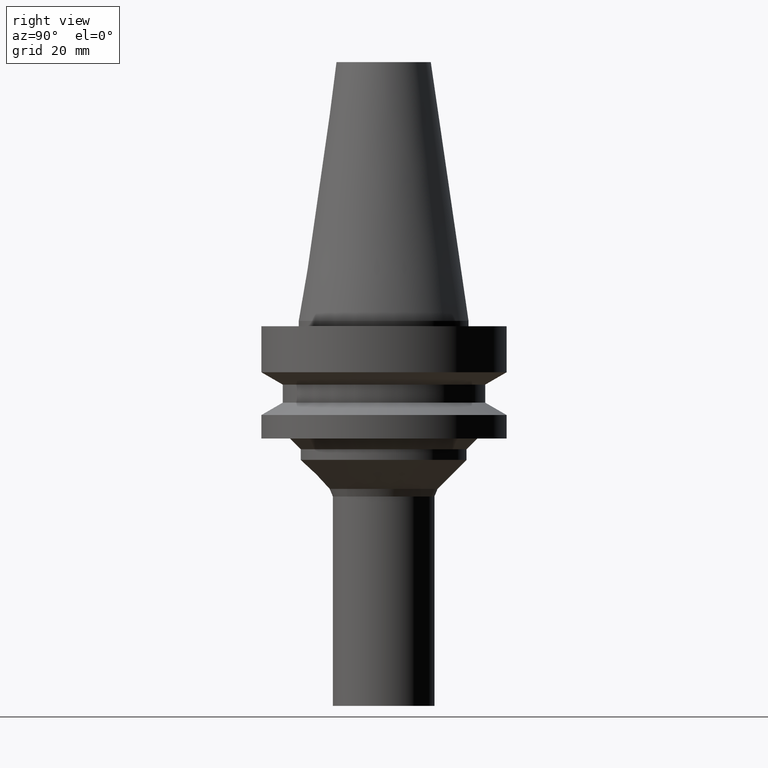
[diagram: clean part render]
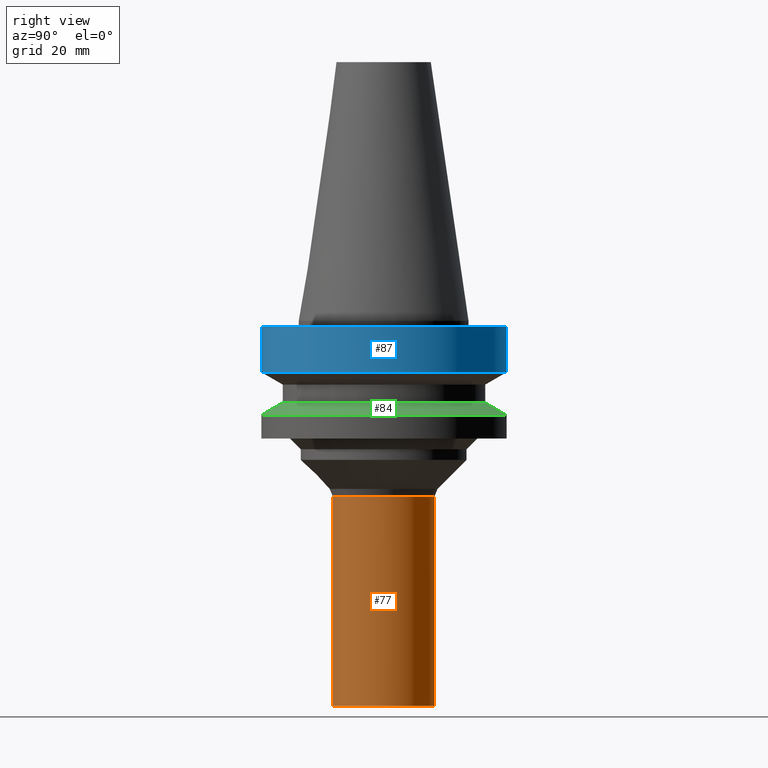
[diagram: same view with three faces highlighted in distinct colors, each labeled with its STEP entity id]
A machine part, right view with three faces highlighted in distinct colors.
Their STEP definitions:

[orange] entity #77 — the highlighted cylindrical surface (bore or boss wall) has radius 9.5 mm, axis along (0, 0, -1).
#77=ADVANCED_FACE('',(#96,#97),#98,.T.);
#96=FACE_BOUND('',#142,.T.);
#97=FACE_BOUND('',#143,.T.);
#98=CYLINDRICAL_SURFACE('',#144,9.50000000000001);
#142=EDGE_LOOP('',(#192));
#143=EDGE_LOOP('',(#193));
#144=AXIS2_PLACEMENT_3D('',#194,#195,#196);
#192=ORIENTED_EDGE('',*,*,#264,.F.);
#193=ORIENTED_EDGE('',*,*,#263,.T.);
#194=CARTESIAN_POINT('',(3.20944493963005E-015,6.4188898792601E-015,-52.4142135));
#195=DIRECTION('',(6.12323399573677E-017,1.22464679914735E-016,-1.0));
#196=DIRECTION('',(-1.23259516440783E-032,1.0,1.22464679914735E-016));
#263=EDGE_CURVE('',#279,#279,#280,.T.);
#264=EDGE_CURVE('',#281,#281,#282,.T.);
#279=VERTEX_POINT('',#309);
#280=CIRCLE('',#310,9.50000000000001);
#281=VERTEX_POINT('',#311);
#282=CIRCLE('',#312,9.50000000000001);
#309=CARTESIAN_POINT('',(4.40872847693047E-015,9.50000000000002,-72.0));
#310=AXIS2_PLACEMENT_3D('',#340,#341,#342);
#311=CARTESIAN_POINT('',(2.01016140232963E-015,9.50000000000002,-32.828427));
#312=AXIS2_PLACEMENT_3D('',#343,#344,#345);
#340=CARTESIAN_POINT('',(4.40872847693047E-015,8.81745695386094E-015,-72.0));
#341=DIRECTION('',(-6.12323399573677E-017,-1.22464679914735E-016,1.0));
#342=DIRECTION('',(-1.23259516440783E-032,1.0,1.22464679914735E-016));
#343=CARTESIAN_POINT('',(2.01016140232963E-015,4.02032280465925E-015,-32.828427));
#344=DIRECTION('',(-6.12323399573677E-017,-1.22464679914735E-016,1.0));
#345=DIRECTION('',(-1.23259516440783E-032,1.0,1.22464679914735E-016));

[blue] entity #87 — the highlighted cylindrical surface (bore or boss wall) has radius 23 mm, axis along (0, 0, -1).
#87=ADVANCED_FACE('',(#126,#127),#128,.T.);
#126=FACE_BOUND('',#172,.T.);
#127=FACE_BOUND('',#173,.T.);
#128=CYLINDRICAL_SURFACE('',#174,23.0);
#172=EDGE_LOOP('',(#242));
#173=EDGE_LOOP('',(#243));
#174=AXIS2_PLACEMENT_3D('',#244,#245,#246);
#242=ORIENTED_EDGE('',*,*,#274,.F.);
#243=ORIENTED_EDGE('',*,*,#273,.T.);
#244=CARTESIAN_POINT('',(3.24531401774048E-016,6.49062803548097E-016,-5.3));
#245=DIRECTION('',(6.12323399573677E-017,1.22464679914735E-016,-1.0));
#246=DIRECTION('',(-1.23259516440783E-032,1.0,1.22464679914735E-016));
#273=EDGE_CURVE('',#299,#299,#300,.T.);
#274=EDGE_CURVE('',#301,#301,#302,.T.);
#299=VERTEX_POINT('',#329);
#300=CIRCLE('',#330,23.0);
#301=VERTEX_POINT('',#331);
#302=CIRCLE('',#332,23.0);
#329=CARTESIAN_POINT('',(5.87830463590729E-016,23.0,-9.6));
#330=AXIS2_PLACEMENT_3D('',#370,#371,#372);
#331=CARTESIAN_POINT('',(6.12323399573674E-017,23.0,-0.999999999999997));
#332=AXIS2_PLACEMENT_3D('',#373,#374,#375);
#370=CARTESIAN_POINT('',(5.8783046359073E-016,1.17566092718146E-015,-9.6));
#371=DIRECTION('',(-6.12323399573677E-017,-1.22464679914735E-016,1.0));
#372=DIRECTION('',(-1.23259516440783E-032,1.0,1.22464679914735E-016));
#373=CARTESIAN_POINT('',(6.12323399573677E-017,1.22464679914735E-016,-1.0));
#374=DIRECTION('',(-6.12323399573677E-017,-1.22464679914735E-016,1.0));
#375=DIRECTION('',(-1.23259516440783E-032,1.0,1.22464679914735E-016));

[green] entity #84 — the highlighted conical surface has half-angle 60 deg.
#84=ADVANCED_FACE('',(#117,#118),#119,.T.);
#117=FACE_BOUND('',#163,.T.);
#118=FACE_BOUND('',#164,.T.);
#119=CONICAL_SURFACE('',#165,21.0,1.0471975511966);
#163=EDGE_LOOP('',(#227));
#164=EDGE_LOOP('',(#228));
#165=AXIS2_PLACEMENT_3D('',#229,#230,#231);
#227=ORIENTED_EDGE('',*,*,#271,.F.);
#228=ORIENTED_EDGE('',*,*,#270,.T.);
#229=CARTESIAN_POINT('',(1.00698416733468E-015,2.01396833466935E-015,-16.4452994616207));
#230=DIRECTION('',(6.12323399573676E-017,1.22464679914735E-016,-1.0));
#231=DIRECTION('',(-1.23259516440783E-032,1.0,1.22464679914735E-016));
#270=EDGE_CURVE('',#293,#293,#294,.T.);
#271=EDGE_CURVE('',#295,#295,#296,.T.);
#293=VERTEX_POINT('',#323);
#294=CIRCLE('',#324,23.0);
#295=VERTEX_POINT('',#325);
#296=CIRCLE('',#326,19.0);
#323=CARTESIAN_POINT('',(1.07768918324967E-015,23.0,-17.6));
#324=AXIS2_PLACEMENT_3D('',#361,#362,#363);
#325=CARTESIAN_POINT('',(9.36279151419683E-016,19.0,-15.2905989232415));
#326=AXIS2_PLACEMENT_3D('',#364,#365,#366);
#361=CARTESIAN_POINT('',(1.07768918324967E-015,2.15537836649934E-015,-17.6));
#362=DIRECTION('',(-6.12323399573677E-017,-1.22464679914735E-016,1.0));
#363=DIRECTION('',(-1.23259516440783E-032,1.0,1.22464679914735E-016));
#364=CARTESIAN_POINT('',(9.36279151419684E-016,1.87255830283937E-015,-15.2905989232415));
#365=DIRECTION('',(-6.12323399573677E-017,-1.22464679914735E-016,1.0));
#366=DIRECTION('',(-1.23259516440783E-032,1.0,1.22464679914735E-016));